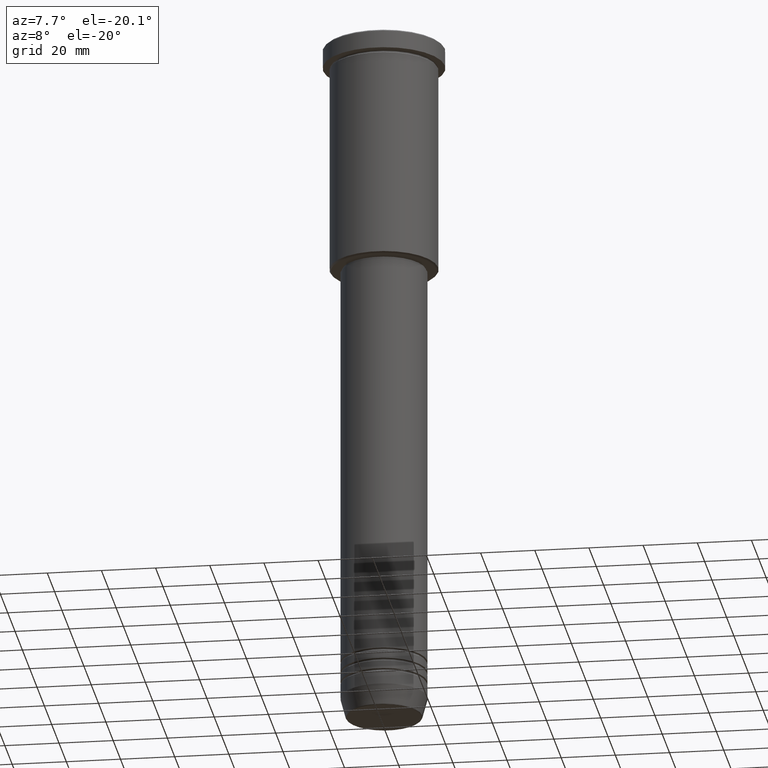
[diagram: clean part render]
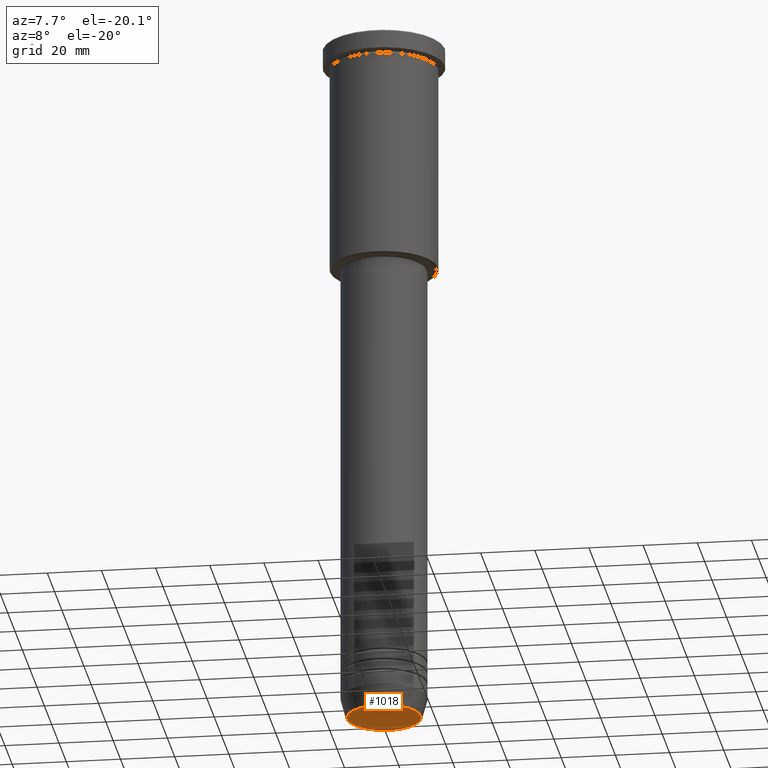
[diagram: same view with one face highlighted and labeled with its STEP entity id]
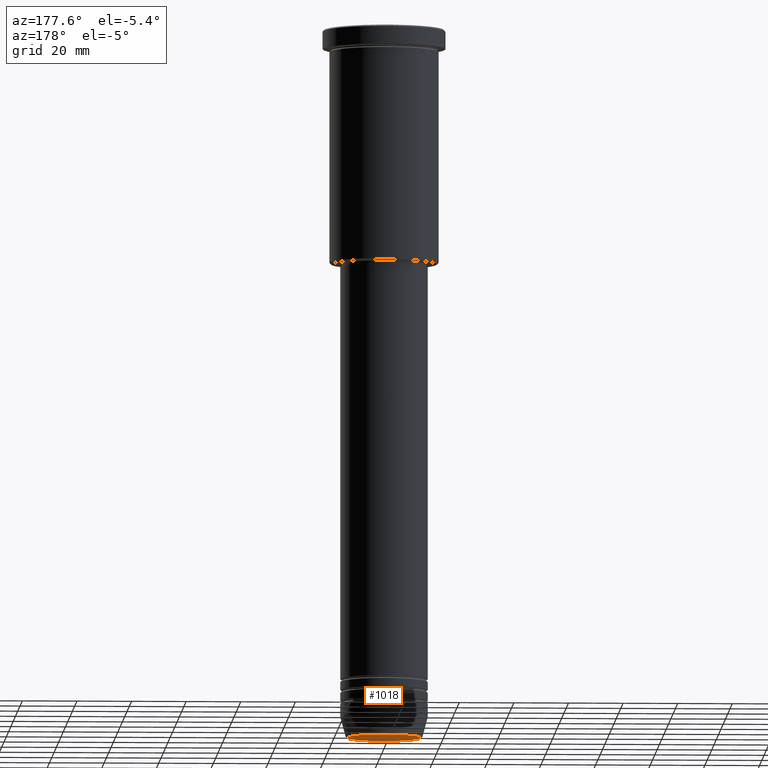
[diagram: same view with one face highlighted and labeled with its STEP entity id]
A machine part, auxiliary view. The second image highlights one B-rep face of the part: STEP entity #1018.
A second angle (auxiliary view) of the same face is appended — the face is thin or edge-on in the first view.
In plain terms, the highlighted planar face has unit normal (0, -0, 1).
Its self-contained STEP definition (entity closure, byte-faithful):
#14 = CARTESIAN_POINT ( 'NONE',  ( 0.000000000000000000, 0.000000000000000000, -260.0000000000000000 ) ) ;
#25 = DIRECTION ( 'NONE',  ( 0.000000000000000000, -0.000000000000000000, 1.000000000000000000 ) ) ;
#46 = DIRECTION ( 'NONE',  ( 1.000000000000000000, 0.000000000000000000, 0.000000000000000000 ) ) ;
#104 = DIRECTION ( 'NONE',  ( 1.000000000000000000, 0.000000000000000000, 0.000000000000000000 ) ) ;
#114 = CARTESIAN_POINT ( 'NONE',  ( -13.60671756277709399, 1.695915260300171258E-15, -260.0000000000000000 ) ) ;
#138 = FACE_OUTER_BOUND ( 'NONE', #532, .T. ) ;
#160 = CARTESIAN_POINT ( 'NONE',  ( 13.60671756277709399, 0.000000000000000000, -260.0000000000000000 ) ) ;
#218 = PLANE ( 'NONE',  #245 ) ;
#223 = CIRCLE ( 'NONE', #440, 13.60671756277709399 ) ;
#245 = AXIS2_PLACEMENT_3D ( 'NONE', #614, #25, #46 ) ;
#287 = DIRECTION ( 'NONE',  ( 0.000000000000000000, 0.000000000000000000, -1.000000000000000000 ) ) ;
#397 = ORIENTED_EDGE ( 'NONE', *, *, #487, .T. ) ;
#440 = AXIS2_PLACEMENT_3D ( 'NONE', #618, #1067, #904 ) ;
#487 = EDGE_CURVE ( 'NONE', #495, #1097, #223, .T. ) ;
#491 = ORIENTED_EDGE ( 'NONE', *, *, #981, .T. ) ;
#495 = VERTEX_POINT ( 'NONE', #160 ) ;
#532 = EDGE_LOOP ( 'NONE', ( #397, #491 ) ) ;
#614 = CARTESIAN_POINT ( 'NONE',  ( 0.000000000000000000, 0.000000000000000000, -260.0000000000000000 ) ) ;
#618 = CARTESIAN_POINT ( 'NONE',  ( 0.000000000000000000, 0.000000000000000000, -260.0000000000000000 ) ) ;
#803 = AXIS2_PLACEMENT_3D ( 'NONE', #14, #287, #104 ) ;
#837 = CIRCLE ( 'NONE', #803, 13.60671756277709399 ) ;
#904 = DIRECTION ( 'NONE',  ( 1.000000000000000000, 0.000000000000000000, 0.000000000000000000 ) ) ;
#981 = EDGE_CURVE ( 'NONE', #1097, #495, #837, .T. ) ;
#1018 = ADVANCED_FACE ( 'NONE', ( #138 ), #218, .F. ) ;
#1067 = DIRECTION ( 'NONE',  ( 0.000000000000000000, 0.000000000000000000, -1.000000000000000000 ) ) ;
#1097 = VERTEX_POINT ( 'NONE', #114 ) ;